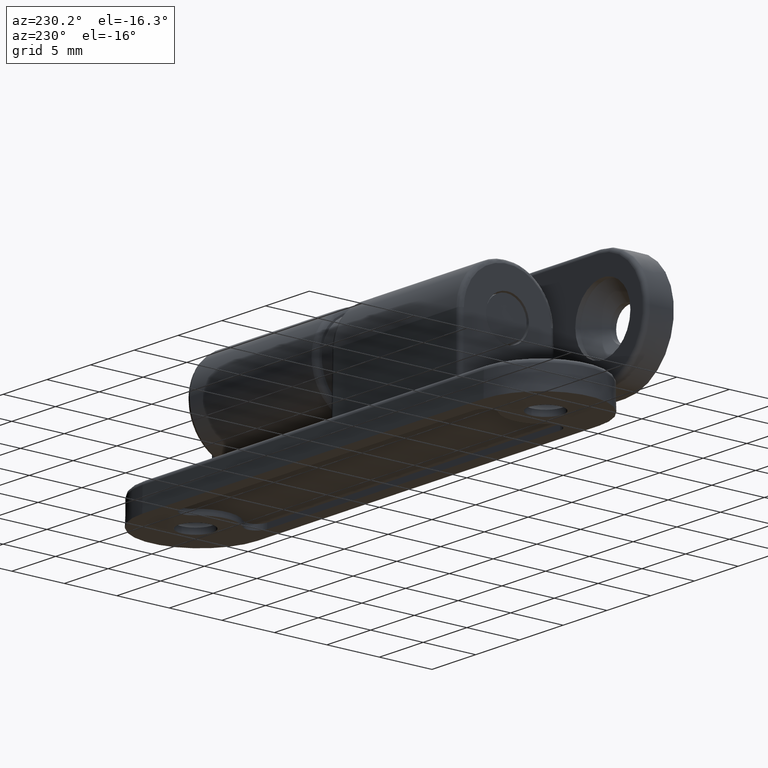
[diagram: clean part render]
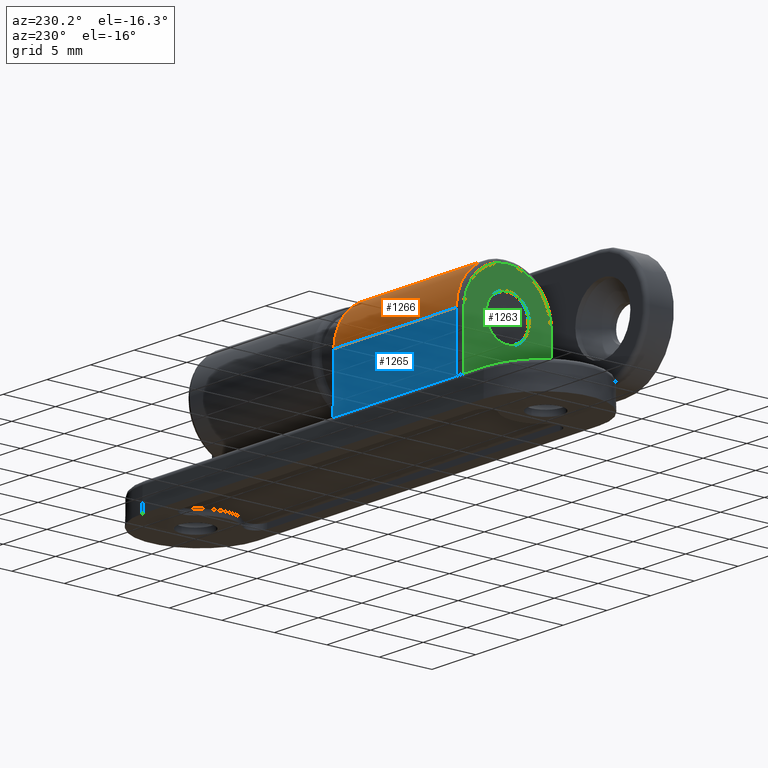
[diagram: same view with three faces highlighted in distinct colors, each labeled with its STEP entity id]
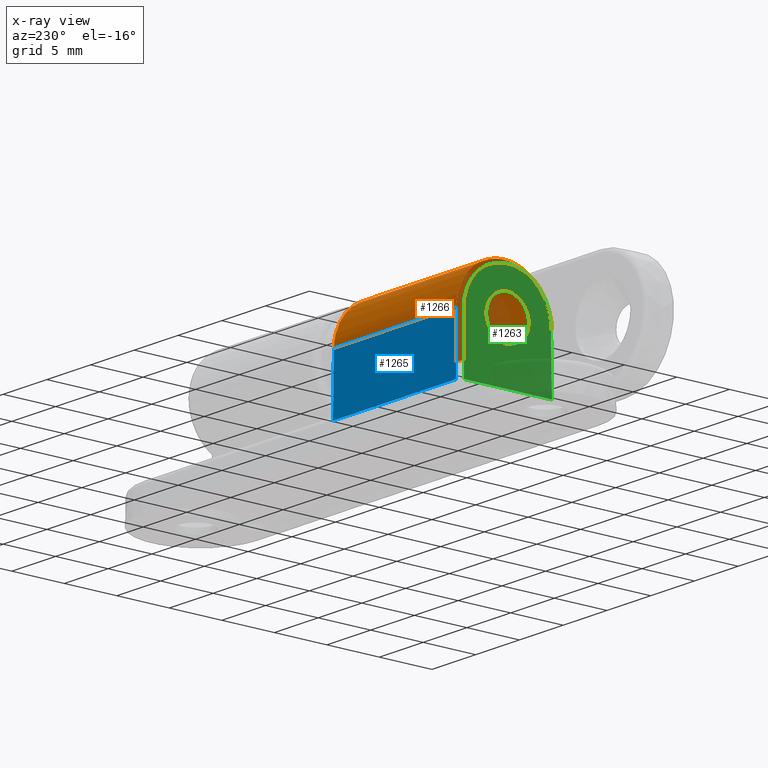
[diagram: x-ray of the same camera — body ghosted, the three highlighted faces saturated]
A machine part, auxiliary view with three faces highlighted in distinct colors.
The next image is the same camera in x-ray (body ghosted, the three faces saturated) — at least one of them is partly hidden behind the body in this view.
Their STEP definitions:

[orange] entity #1266 — the highlighted cylindrical surface (partial cylindrical patch) has radius 4.55 mm, axis along (-1, 0, -0).
#66=B_SPLINE_CURVE_WITH_KNOTS('',3,(#2737,#2738,#2739,#2740,#2741,#2742,
#2743,#2744,#2745,#2746,#2747,#2748,#2749,#2750,#2751,#2752,#2753,#2754,
#2755,#2756,#2757,#2758,#2759,#2760,#2761,#2762,#2763,#2764,#2765,#2766,
#2767,#2768,#2769,#2770,#2771,#2772,#2773,#2774,#2775,#2776,#2777,#2778,
#2779,#2780,#2781,#2782,#2783,#2784,#2785,#2786,#2787,#2788,#2789,#2790,
#2791,#2792,#2793,#2794,#2795,#2796,#2797,#2798,#2799,#2800,#2801,#2802,
#2803,#2804,#2805,#2806,#2807,#2808,#2809,#2810,#2811,#2812,#2813,#2814,
#2815,#2816,#2817,#2818,#2819,#2820,#2821,#2822,#2823,#2824,#2825,#2826,
#2827,#2828,#2829,#2830,#2831,#2832,#2833,#2834,#2835,#2836,#2837,#2838,
#2839,#2840,#2841,#2842,#2843,#2844,#2845,#2846,#2847,#2848,#2849,#2850,
#2851,#2852,#2853,#2854,#2855,#2856,#2857,#2858,#2859,#2860,#2861,#2862,
#2863,#2864,#2865,#2866,#2867,#2868,#2869,#2870,#2871,#2872,#2873,#2874,
#2875,#2876,#2877,#2878,#2879,#2880,#2881,#2882,#2883,#2884),
 .UNSPECIFIED.,.F.,.F.,(4,3,3,3,3,3,3,3,3,3,3,3,3,3,3,3,3,3,3,3,3,3,3,3,
3,3,3,3,3,3,3,3,3,3,3,3,3,3,3,3,3,3,3,3,3,3,3,3,3,4),(0.,0.0220864110622519,
0.0443492554398847,0.0668983379467098,0.0883819358082658,0.0896367224313403,
0.111276368607197,0.112575381639334,0.134555348433603,0.135726396687163,
0.1592208815081,0.182927323232232,0.20696964107204,0.216954899475843,0.240783741220988,
0.25,0.274181113312349,0.298734223252613,0.323905884750016,0.349485095444977,
0.375498946745718,0.401977769700323,0.429229210957132,0.456959053474368,
0.485474678145715,0.5,0.528678134910078,0.556343368046318,0.583438547244325,
0.610015907360414,0.636112103409371,0.661759574119072,0.6867870035,0.71148624003663,
0.73571492113616,0.75,0.773826215286149,0.783057505414613,0.807143200204973,
0.831250300179351,0.854644740362747,0.877810003393544,0.899568933898584,
0.900759887359895,0.922283448806637,0.923506875081518,0.945973491405082,
0.96828814808885,0.990390577973673,1.),.UNSPECIFIED.);
#67=B_SPLINE_CURVE_WITH_KNOTS('',3,(#2885,#2886,#2887,#2888,#2889,#2890,
#2891,#2892,#2893,#2894,#2895,#2896,#2897,#2898,#2899,#2900,#2901,#2902,
#2903,#2904,#2905,#2906,#2907,#2908,#2909,#2910,#2911,#2912,#2913,#2914,
#2915,#2916,#2917,#2918,#2919,#2920,#2921,#2922,#2923,#2924,#2925,#2926,
#2927,#2928,#2929,#2930,#2931,#2932,#2933,#2934,#2935,#2936,#2937,#2938,
#2939,#2940,#2941,#2942,#2943,#2944,#2945,#2946,#2947,#2948,#2949,#2950,
#2951,#2952,#2953,#2954,#2955,#2956,#2957,#2958,#2959,#2960,#2961,#2962,
#2963,#2964,#2965,#2966,#2967,#2968,#2969,#2970,#2971,#2972,#2973,#2974,
#2975,#2976,#2977,#2978,#2979,#2980,#2981,#2982,#2983,#2984,#2985,#2986,
#2987,#2988,#2989,#2990,#2991,#2992,#2993,#2994,#2995,#2996,#2997,#2998,
#2999,#3000,#3001,#3002,#3003,#3004,#3005,#3006,#3007,#3008,#3009,#3010,
#3011,#3012,#3013,#3014,#3015,#3016,#3017,#3018,#3019,#3020,#3021,#3022,
#3023,#3024,#3025,#3026,#3027,#3028,#3029,#3030,#3031,#3032),
 .UNSPECIFIED.,.F.,.F.,(4,3,3,3,3,3,3,3,3,3,3,3,3,3,3,3,3,3,3,3,3,3,3,3,
3,3,3,3,3,3,3,3,3,3,3,3,3,3,3,3,3,3,3,3,3,3,3,3,3,4),(0.,0.0220864109887631,
0.0443492552938548,0.0668983377294486,0.0883819355395348,0.0896367221436551,
0.111276368267365,0.11257538128236,0.134555348025491,0.135726396261697,
0.159220881016248,0.182927322675133,0.206969640452506,0.216954899189374,
0.240783740873804,0.25,0.274181113418606,0.298734223432689,0.323905884953182,
0.349485095639664,0.375498946900172,0.401977769782878,0.429229210921994,
0.45695905329541,0.485474677789302,0.5,0.528678134871698,0.556343368012736,
0.583438547148655,0.610015907196454,0.636112103171831,0.661759573803517,
0.686787003099248,0.711486239548054,0.735714920553722,0.75,0.773826215176287,
0.78305750593313,0.807143200614942,0.831250300538075,0.85464474060458,0.87781000351621,
0.899568933936551,0.900759887361342,0.922283448719095,0.923506874959792,
0.945973491156779,0.968288147712546,0.990390577466216,1.),.UNSPECIFIED.);
#138=LINE('',#2727,#210);
#142=LINE('',#2734,#214);
#210=VECTOR('',#1776,13.978751945018);
#214=VECTOR('',#1782,13.978751945018);
#336=FACE_OUTER_BOUND('',#443,.T.);
#443=EDGE_LOOP('',(#1077,#1078,#1079,#1080));
#663=VERTEX_POINT('',#2725);
#664=VERTEX_POINT('',#2726);
#665=VERTEX_POINT('',#2731);
#666=VERTEX_POINT('',#2733);
#812=EDGE_CURVE('',#663,#664,#138,.T.);
#816=EDGE_CURVE('',#665,#666,#142,.T.);
#818=EDGE_CURVE('',#665,#664,#66,.T.);
#819=EDGE_CURVE('',#663,#666,#67,.T.);
#1077=ORIENTED_EDGE('',*,*,#816,.F.);
#1078=ORIENTED_EDGE('',*,*,#818,.T.);
#1079=ORIENTED_EDGE('',*,*,#812,.F.);
#1080=ORIENTED_EDGE('',*,*,#819,.T.);
#1199=CYLINDRICAL_SURFACE('',#1424,4.54999999999995);
#1266=ADVANCED_FACE('',(#336),#1199,.T.);
#1424=AXIS2_PLACEMENT_3D('',#2736,#1784,#1785);
#1776=DIRECTION('',(-1.,0.,0.));
#1782=DIRECTION('',(1.,0.,0.));
#1784=DIRECTION('center_axis',(-1.,0.,0.));
#1785=DIRECTION('ref_axis',(0.,1.,9.95799250102962E-17));
#2725=CARTESIAN_POINT('',(-1.260624027491,8.08970573651968,4.54982674994325));
#2726=CARTESIAN_POINT('',(-15.239375972509,8.08970573651968,4.54982674994325));
#2727=CARTESIAN_POINT('',(-0.487114828091006,8.08970573651968,4.54982674994325));
#2731=CARTESIAN_POINT('',(-15.239375972509,8.08970573651968,-4.54982674994065));
#2733=CARTESIAN_POINT('',(-1.260624027491,8.08970573651968,-4.54982674994065));
#2734=CARTESIAN_POINT('',(-0.487114828091006,8.08970573651968,-4.54982674994065));
#2736=CARTESIAN_POINT('Origin',(-0.487114828091006,8.05000000000208,1.24967813874832E-12));
#2737=CARTESIAN_POINT('Ctrl Pts',(-15.2393759725095,8.08970573651968,-4.54982674994064));
#2738=CARTESIAN_POINT('Ctrl Pts',(-15.238318799767,8.22252196178717,-4.54866768030226));
#2739=CARTESIAN_POINT('Ctrl Pts',(-15.237281685112,8.35392349047203,-4.54146218164563));
#2740=CARTESIAN_POINT('Ctrl Pts',(-15.2362662505249,8.48349319843042,-4.52871681771768));
#2741=CARTESIAN_POINT('Ctrl Pts',(-15.2352427043215,8.61409795065579,-4.51586963974637));
#2742=CARTESIAN_POINT('Ctrl Pts',(-15.2342411749573,8.74284177137815,-4.49739375275306));
#2743=CARTESIAN_POINT('Ctrl Pts',(-15.2332629272725,8.86934638750036,-4.47378372599097));
#2744=CARTESIAN_POINT('Ctrl Pts',(-15.232272102049,8.99747750040074,-4.44987014008899));
#2745=CARTESIAN_POINT('Ctrl Pts',(-15.2313051564423,9.12331157026306,-4.42068951638928));
#2746=CARTESIAN_POINT('Ctrl Pts',(-15.2303631198036,9.2465026434836,-4.38673111184291));
#2747=CARTESIAN_POINT('Ctrl Pts',(-15.229465596088,9.36387271725057,-4.35437730289864));
#2748=CARTESIAN_POINT('Ctrl Pts',(-15.2285906850795,9.47884415775625,-4.31768630528496));
#2749=CARTESIAN_POINT('Ctrl Pts',(-15.2277390506109,9.59115560996598,-4.27706139824945));
#2750=CARTESIAN_POINT('Ctrl Pts',(-15.2276893094295,9.59771535423037,-4.2746886304179));
#2751=CARTESIAN_POINT('Ctrl Pts',(-15.22763964767,9.60426603736116,-4.27230243634749));
#2752=CARTESIAN_POINT('Ctrl Pts',(-15.2275900654703,9.61080761197322,-4.26990289404872));
#2753=CARTESIAN_POINT('Ctrl Pts',(-15.2267349868153,9.72362150194856,-4.22852115999565));
#2754=CARTESIAN_POINT('Ctrl Pts',(-15.2259035699646,9.83372247173047,-4.18317139085841));
#2755=CARTESIAN_POINT('Ctrl Pts',(-15.2250962171035,9.94088307323242,-4.1342451917288));
#2756=CARTESIAN_POINT('Ctrl Pts',(-15.2250477522681,9.94731585021738,-4.13130818574608));
#2757=CARTESIAN_POINT('Ctrl Pts',(-15.2249993741428,9.95373804245431,-4.12835828634736));
#2758=CARTESIAN_POINT('Ctrl Pts',(-15.2249510828113,9.96014960481172,-4.12539557611836));
#2759=CARTESIAN_POINT('Ctrl Pts',(-15.2241339687125,10.0686365285213,-4.07526499940855));
#2760=CARTESIAN_POINT('Ctrl Pts',(-15.2233417114621,10.1740768856086,-4.02146832797746));
#2761=CARTESIAN_POINT('Ctrl Pts',(-15.2225743568752,10.2762733222099,-3.96439445255223));
#2762=CARTESIAN_POINT('Ctrl Pts',(-15.2225334737721,10.2817181420188,-3.96135367170092));
#2763=CARTESIAN_POINT('Ctrl Pts',(-15.2224926613304,10.2871537609682,-3.95830358459041));
#2764=CARTESIAN_POINT('Ctrl Pts',(-15.2224519195475,10.2925801515756,-3.95524424881738));
#2765=CARTESIAN_POINT('Ctrl Pts',(-15.2216345260748,10.4014486387369,-3.89386546475536));
#2766=CARTESIAN_POINT('Ctrl Pts',(-15.2208455904531,10.5065994475049,-3.82876565246413));
#2767=CARTESIAN_POINT('Ctrl Pts',(-15.2200846154578,10.6078408349667,-3.76039318213688));
#2768=CARTESIAN_POINT('Ctrl Pts',(-15.2193167752809,10.7099955776745,-3.69140388546997));
#2769=CARTESIAN_POINT('Ctrl Pts',(-15.2185773990533,10.8081701979306,-3.61908257182945));
#2770=CARTESIAN_POINT('Ctrl Pts',(-15.2178654065742,10.9022149220056,-3.54386359522079));
#2771=CARTESIAN_POINT('Ctrl Pts',(-15.2171433264881,10.9975920846215,-3.46757890584163));
#2772=CARTESIAN_POINT('Ctrl Pts',(-15.2164493967944,11.0887216380292,-3.38831377270412));
#2773=CARTESIAN_POINT('Ctrl Pts',(-15.2157820421546,11.1754934316277,-3.30649536967507));
#2774=CARTESIAN_POINT('Ctrl Pts',(-15.2155048763435,11.2115315036229,-3.27251454046073));
#2775=CARTESIAN_POINT('Ctrl Pts',(-15.2152322905693,11.2468184323078,-3.23809299895953));
#2776=CARTESIAN_POINT('Ctrl Pts',(-15.2149641619014,11.281348528926,-3.20326013082855));
#2777=CARTESIAN_POINT('Ctrl Pts',(-15.2143242990822,11.3637512244281,-3.12013490074873));
#2778=CARTESIAN_POINT('Ctrl Pts',(-15.2137108115284,11.4417130510832,-3.03477052098328));
#2779=CARTESIAN_POINT('Ctrl Pts',(-15.213121012064,11.5153596339376,-2.94771210439472));
#2780=CARTESIAN_POINT('Ctrl Pts',(-15.2128928958782,11.5438438537345,-2.91404060223979));
#2781=CARTESIAN_POINT('Ctrl Pts',(-15.2126683214472,11.5716827330619,-2.88011513219848));
#2782=CARTESIAN_POINT('Ctrl Pts',(-15.2124471266466,11.5988841698824,-2.8459651761137));
#2783=CARTESIAN_POINT('Ctrl Pts',(-15.2118667678845,11.6702538049793,-2.75636439802161));
#2784=CARTESIAN_POINT('Ctrl Pts',(-15.2113140260791,11.7372431598522,-2.66521108602338));
#2785=CARTESIAN_POINT('Ctrl Pts',(-15.2107893761526,11.8000080915883,-2.57299050229304));
#2786=CARTESIAN_POINT('Ctrl Pts',(-15.2102566551335,11.8637385844487,-2.4793512185331));
#2787=CARTESIAN_POINT('Ctrl Pts',(-15.2097528955301,11.9231137534833,-2.38461143708782));
#2788=CARTESIAN_POINT('Ctrl Pts',(-15.2092783675509,11.9783073021785,-2.28922696332228));
#2789=CARTESIAN_POINT('Ctrl Pts',(-15.2087918850771,12.0348913083583,-2.19143952655458));
#2790=CARTESIAN_POINT('Ctrl Pts',(-15.2083361227307,12.0870803761489,-2.09297449128865));
#2791=CARTESIAN_POINT('Ctrl Pts',(-15.2079111678899,12.1350719565253,-1.99426958013582));
#2792=CARTESIAN_POINT('Ctrl Pts',(-15.2074793326926,12.1838405587154,-1.89396655805418));
#2793=CARTESIAN_POINT('Ctrl Pts',(-15.2070793064207,12.2282746968757,-1.79341575878616));
#2794=CARTESIAN_POINT('Ctrl Pts',(-15.2067110288459,12.2685915232071,-1.69302278788709));
#2795=CARTESIAN_POINT('Ctrl Pts',(-15.2063364935179,12.3095934109357,-1.59092394489494));
#2796=CARTESIAN_POINT('Ctrl Pts',(-15.2059947905777,12.3463369447905,-1.48898826695065));
#2797=CARTESIAN_POINT('Ctrl Pts',(-15.205685768087,12.3790598907845,-1.38758832323135));
#2798=CARTESIAN_POINT('Ctrl Pts',(-15.2053712221273,12.4123677268105,-1.28437595662287));
#2799=CARTESIAN_POINT('Ctrl Pts',(-15.2050905316786,12.4415100588214,-1.18171854512386));
#2800=CARTESIAN_POINT('Ctrl Pts',(-15.2048435083257,12.4667459741374,-1.0799547483897));
#2801=CARTESIAN_POINT('Ctrl Pts',(-15.2045892771463,12.4927182412951,-0.975221613781518));
#2802=CARTESIAN_POINT('Ctrl Pts',(-15.2043707044833,12.514552903291,-0.871434945023737));
#2803=CARTESIAN_POINT('Ctrl Pts',(-15.2041876000519,12.5325395995627,-0.768908051229388));
#2804=CARTESIAN_POINT('Ctrl Pts',(-15.2040012812073,12.5508420537455,-0.664581289503041));
#2805=CARTESIAN_POINT('Ctrl Pts',(-15.2038516875987,12.5651603767912,-0.561558705076451));
#2806=CARTESIAN_POINT('Ctrl Pts',(-15.2037386442999,12.5758052829929,-0.460115661708266));
#2807=CARTESIAN_POINT('Ctrl Pts',(-15.2036223976866,12.5867518345184,-0.355798020942428));
#2808=CARTESIAN_POINT('Ctrl Pts',(-15.2035448062292,12.5938139408352,-0.253150547233431));
#2809=CARTESIAN_POINT('Ctrl Pts',(-15.2035056699206,12.5973335151536,-0.152418109018722));
#2810=CARTESIAN_POINT('Ctrl Pts',(-15.2034857346224,12.5991263199879,-0.101106903211409));
#2811=CARTESIAN_POINT('Ctrl Pts',(-15.203475776723,12.6000000000019,-0.050291744011546));
#2812=CARTESIAN_POINT('Ctrl Pts',(-15.2034757623935,12.6000000000019,1.27621717101289E-12));
#2813=CARTESIAN_POINT('Ctrl Pts',(-15.203475734102,12.6000000000019,0.0992937322938478));
#2814=CARTESIAN_POINT('Ctrl Pts',(-15.2035144739378,12.5965941982408,0.200628429508697));
#2815=CARTESIAN_POINT('Ctrl Pts',(-15.203592216502,12.5894338384912,0.303781714153657));
#2816=CARTESIAN_POINT('Ctrl Pts',(-15.2036672132259,12.5825263801634,0.403291660578689));
#2817=CARTESIAN_POINT('Ctrl Pts',(-15.2037785010906,12.5721248100302,0.504494086341034));
#2818=CARTESIAN_POINT('Ctrl Pts',(-15.2039262500446,12.5579187358239,0.607142348636165));
#2819=CARTESIAN_POINT('Ctrl Pts',(-15.2040709545684,12.5440053838409,0.707675499669231));
#2820=CARTESIAN_POINT('Ctrl Pts',(-15.2042506309062,12.5264425953304,0.809595700768479));
#2821=CARTESIAN_POINT('Ctrl Pts',(-15.2044654515971,12.504942826872,0.91262316611167));
#2822=CARTESIAN_POINT('Ctrl Pts',(-15.2046761668251,12.4838539429582,1.01368166173053));
#2823=CARTESIAN_POINT('Ctrl Pts',(-15.2049206964676,12.458977012479,1.11580566091684));
#2824=CARTESIAN_POINT('Ctrl Pts',(-15.2051992273127,12.43004617659,1.21868184611997));
#2825=CARTESIAN_POINT('Ctrl Pts',(-15.2054727155562,12.4016391127611,1.31969553168178));
#2826=CARTESIAN_POINT('Ctrl Pts',(-15.2057789876182,12.3693235003829,1.42143453079209));
#2827=CARTESIAN_POINT('Ctrl Pts',(-15.206118219815,12.3328545753592,1.52355225825845));
#2828=CARTESIAN_POINT('Ctrl Pts',(-15.206451618898,12.2970127352457,1.62391406651668));
#2829=CARTESIAN_POINT('Ctrl Pts',(-15.2068168581967,12.2571591079268,1.7246417712312));
#2830=CARTESIAN_POINT('Ctrl Pts',(-15.2072140563432,12.2130694103087,1.82535619889761));
#2831=CARTESIAN_POINT('Ctrl Pts',(-15.2076016520119,12.1700456047237,1.92363580138131));
#2832=CARTESIAN_POINT('Ctrl Pts',(-15.2080196838753,12.1229880310724,2.02190275729954));
#2833=CARTESIAN_POINT('Ctrl Pts',(-15.2084681579984,12.0716968887843,2.11975611201263));
#2834=CARTESIAN_POINT('Ctrl Pts',(-15.2089107511341,12.0210783439739,2.21632628376999));
#2835=CARTESIAN_POINT('Ctrl Pts',(-15.2093829969911,11.966336494377,2.3124937234575));
#2836=CARTESIAN_POINT('Ctrl Pts',(-15.2098847423527,11.9072883831372,2.40782433871167));
#2837=CARTESIAN_POINT('Ctrl Pts',(-15.2103769287546,11.8493652220453,2.50133877073024));
#2838=CARTESIAN_POINT('Ctrl Pts',(-15.2108975035643,11.7872982765459,2.59404803297414));
#2839=CARTESIAN_POINT('Ctrl Pts',(-15.2114461250128,11.7209241996684,2.68549406994589));
#2840=CARTESIAN_POINT('Ctrl Pts',(-15.2117695887882,11.6817904590073,2.73941008149274));
#2841=CARTESIAN_POINT('Ctrl Pts',(-15.2121027981756,11.6411596470143,2.79288605177024));
#2842=CARTESIAN_POINT('Ctrl Pts',(-15.2124456466235,11.5989999839905,2.84581977345706));
#2843=CARTESIAN_POINT('Ctrl Pts',(-15.213017486724,11.5286814917251,2.9341084179111));
#2844=CARTESIAN_POINT('Ctrl Pts',(-15.2136119289826,11.4541012346046,3.02090095807875));
#2845=CARTESIAN_POINT('Ctrl Pts',(-15.2142317245602,11.3751272847777,3.10567239133316));
#2846=CARTESIAN_POINT('Ctrl Pts',(-15.2144718597528,11.3445294145458,3.13851645345461));
#2847=CARTESIAN_POINT('Ctrl Pts',(-15.2147157990411,11.3132721628557,3.17105658145156));
#2848=CARTESIAN_POINT('Ctrl Pts',(-15.2149636956842,11.2813485269563,3.20326013446202));
#2849=CARTESIAN_POINT('Ctrl Pts',(-15.2156104918311,11.1980554075577,3.28728359577469));
#2850=CARTESIAN_POINT('Ctrl Pts',(-15.2162832363514,11.1103552055945,3.3689156833299));
#2851=CARTESIAN_POINT('Ctrl Pts',(-15.2169836146282,11.0183403371343,3.44773691405616));
#2852=CARTESIAN_POINT('Ctrl Pts',(-15.2176846153378,10.926243694193,3.52662819395321));
#2853=CARTESIAN_POINT('Ctrl Pts',(-15.2184133202833,10.8298244616902,3.60270379719061));
#2854=CARTESIAN_POINT('Ctrl Pts',(-15.2191710783807,10.7292206733564,3.67551775945541));
#2855=CARTESIAN_POINT('Ctrl Pts',(-15.2199064354541,10.6315909580071,3.74617917814661));
#2856=CARTESIAN_POINT('Ctrl Pts',(-15.2206691591097,10.5300204303276,3.81376892945294));
#2857=CARTESIAN_POINT('Ctrl Pts',(-15.2214599696447,10.424679536533,3.87785460119527));
#2858=CARTESIAN_POINT('Ctrl Pts',(-15.2222430332234,10.3203705856233,3.94131247540719));
#2859=CARTESIAN_POINT('Ctrl Pts',(-15.2230536344588,10.2123646709243,4.00133459155074));
#2860=CARTESIAN_POINT('Ctrl Pts',(-15.2238919343462,10.1008724717305,4.0574764002165));
#2861=CARTESIAN_POINT('Ctrl Pts',(-15.2246793421544,9.9961488167093,4.11020991382097));
#2862=CARTESIAN_POINT('Ctrl Pts',(-15.225491181547,9.8883496116581,4.159519760932));
#2863=CARTESIAN_POINT('Ctrl Pts',(-15.226327188193,9.7776874318725,4.20501741884852));
#2864=CARTESIAN_POINT('Ctrl Pts',(-15.2263729461869,9.77163044731523,4.20750768798949));
#2865=CARTESIAN_POINT('Ctrl Pts',(-15.2264187765704,9.76556489445629,4.20998653195386));
#2866=CARTESIAN_POINT('Ctrl Pts',(-15.2264646792972,9.75949081123492,4.21245388540034));
#2867=CARTESIAN_POINT('Ctrl Pts',(-15.2272942584475,9.64971666161881,4.25704524454356));
#2868=CARTESIAN_POINT('Ctrl Pts',(-15.2281474641956,9.53715361152068,4.29788506439846));
#2869=CARTESIAN_POINT('Ctrl Pts',(-15.2290237324772,9.42204554019206,4.33457743239891));
#2870=CARTESIAN_POINT('Ctrl Pts',(-15.2290735406673,9.41550265279572,4.33666307269642));
#2871=CARTESIAN_POINT('Ctrl Pts',(-15.2291234233822,9.4089515541567,4.33873530721198));
#2872=CARTESIAN_POINT('Ctrl Pts',(-15.2291733805235,9.40239229336888,4.34079406117629));
#2873=CARTESIAN_POINT('Ctrl Pts',(-15.2300907777934,9.28194008589894,4.37860037314662));
#2874=CARTESIAN_POINT('Ctrl Pts',(-15.231033264967,9.15873102919521,4.41186285059252));
#2875=CARTESIAN_POINT('Ctrl Pts',(-15.2319999307183,9.03308807950904,4.44010752175353));
#2876=CARTESIAN_POINT('Ctrl Pts',(-15.2329600581384,8.90829495327214,4.46816115168279));
#2877=CARTESIAN_POINT('Ctrl Pts',(-15.2339440400358,8.78110064650849,4.49126467816185));
#2878=CARTESIAN_POINT('Ctrl Pts',(-15.2349507306388,8.65186609087776,4.50893031641556));
#2879=CARTESIAN_POINT('Ctrl Pts',(-15.2359478469638,8.52386063934858,4.52642794303858));
#2880=CARTESIAN_POINT('Ctrl Pts',(-15.2369672502627,8.39385335994994,4.53859063902777));
#2881=CARTESIAN_POINT('Ctrl Pts',(-15.2380075035198,8.26224098489683,4.54492085114734));
#2882=CARTESIAN_POINT('Ctrl Pts',(-15.2384597720086,8.20502017875185,4.54767302274522));
#2883=CARTESIAN_POINT('Ctrl Pts',(-15.238915976697,8.14749658284261,4.54932241686789));
#2884=CARTESIAN_POINT('Ctrl Pts',(-15.2393759725095,8.08970573651969,4.54982674994327));
#2885=CARTESIAN_POINT('Ctrl Pts',(-1.26062402749076,8.08970573651968,4.54982674994324));
#2886=CARTESIAN_POINT('Ctrl Pts',(-1.261681200229,8.22252196159815,4.54866768030651));
#2887=CARTESIAN_POINT('Ctrl Pts',(-1.26271831487994,8.35392349009148,4.54146218166882));
#2888=CARTESIAN_POINT('Ctrl Pts',(-1.26373374946359,8.48349319785778,4.52871681777663));
#2889=CARTESIAN_POINT('Ctrl Pts',(-1.26475729566353,8.61409794989852,4.51586963984048));
#2890=CARTESIAN_POINT('Ctrl Pts',(-1.26575882502469,8.74284177043545,4.49739375289865));
#2891=CARTESIAN_POINT('Ctrl Pts',(-1.26673707270641,8.86934638637331,4.47378372620396));
#2892=CARTESIAN_POINT('Ctrl Pts',(-1.2677278979269,8.99747749909971,4.44987014036788));
#2893=CARTESIAN_POINT('Ctrl Pts',(-1.26869484353067,9.12331156878872,4.42068951674934));
#2894=CARTESIAN_POINT('Ctrl Pts',(-1.2696368801668,9.24650264183843,4.38673111229909));
#2895=CARTESIAN_POINT('Ctrl Pts',(-1.27053440388073,9.36387271553221,4.35437730342172));
#2896=CARTESIAN_POINT('Ctrl Pts',(-1.27140931488791,9.47884415596329,4.31768630588191));
#2897=CARTESIAN_POINT('Ctrl Pts',(-1.27226094935474,9.59115560809805,4.27706139892782));
#2898=CARTESIAN_POINT('Ctrl Pts',(-1.27231069053543,9.5977153522747,4.27468863113119));
#2899=CARTESIAN_POINT('Ctrl Pts',(-1.27236035229426,9.60426603531796,4.27230243709606));
#2900=CARTESIAN_POINT('Ctrl Pts',(-1.27240993449322,9.61080760984273,4.26990289483293));
#2901=CARTESIAN_POINT('Ctrl Pts',(-1.27326501314631,9.72362149974493,4.22852116086918));
#2902=CARTESIAN_POINT('Ctrl Pts',(-1.27409642999661,9.83372246945365,4.18317139182878));
#2903=CARTESIAN_POINT('Ctrl Pts',(-1.27490378285597,9.94088307088339,4.13424519280402));
#2904=CARTESIAN_POINT('Ctrl Pts',(-1.27495224769065,9.94731584779463,4.13130818685928));
#2905=CARTESIAN_POINT('Ctrl Pts',(-1.27500062581539,9.95373803995808,4.12835828749884));
#2906=CARTESIAN_POINT('Ctrl Pts',(-1.27504891714627,9.96014960224223,4.12539557730842));
#2907=CARTESIAN_POINT('Ctrl Pts',(-1.27586603124327,10.0686365258915,4.07526500070663));
#2908=CARTESIAN_POINT('Ctrl Pts',(-1.2766582884931,10.1740768829192,4.02146832939094));
#2909=CARTESIAN_POINT('Ctrl Pts',(-1.27742564307858,10.2762733194629,3.96439445408907));
#2910=CARTESIAN_POINT('Ctrl Pts',(-1.2774665261811,10.2817181392008,3.96135367328231));
#2911=CARTESIAN_POINT('Ctrl Pts',(-1.27750733862226,10.2871537580793,3.9583035862166));
#2912=CARTESIAN_POINT('Ctrl Pts',(-1.27754808040453,10.2925801486161,3.95524425048864));
#2913=CARTESIAN_POINT('Ctrl Pts',(-1.27836547387534,10.4014486356663,3.89386546659465));
#2914=CARTESIAN_POINT('Ctrl Pts',(-1.27915440949605,10.5065994443293,3.82876565448403));
#2915=CARTESIAN_POINT('Ctrl Pts',(-1.27991538448934,10.6078408316939,3.76039318434987));
#2916=CARTESIAN_POINT('Ctrl Pts',(-1.28068322466422,10.709995574311,3.69140388787274));
#2917=CARTESIAN_POINT('Ctrl Pts',(-1.28142260089078,10.8081701944839,3.6190825744341));
#2918=CARTESIAN_POINT('Ctrl Pts',(-1.28213459336832,10.9022149184847,3.54386359803948));
#2919=CARTESIAN_POINT('Ctrl Pts',(-1.28285667345299,10.9975920810402,3.46757890886554));
#2920=CARTESIAN_POINT('Ctrl Pts',(-1.28355060314568,11.0887216343955,3.38831377594482));
#2921=CARTESIAN_POINT('Ctrl Pts',(-1.28421795778331,11.1754934279514,3.30649537314406));
#2922=CARTESIAN_POINT('Ctrl Pts',(-1.2844951236035,11.2115315012246,3.27251454280283));
#2923=CARTESIAN_POINT('Ctrl Pts',(-1.28476770938669,11.2468184311352,3.23809300014498));
#2924=CARTESIAN_POINT('Ctrl Pts',(-1.28503583806368,11.2813485289262,3.20326013083089));
#2925=CARTESIAN_POINT('Ctrl Pts',(-1.28567570088181,11.3637512242686,3.12013490091222));
#2926=CARTESIAN_POINT('Ctrl Pts',(-1.28628918843365,11.4417130507732,3.03477052132458));
#2927=CARTESIAN_POINT('Ctrl Pts',(-1.28687898789645,11.5153596334878,2.94771210492897));
#2928=CARTESIAN_POINT('Ctrl Pts',(-1.28710710409084,11.5438438543763,2.91404060149444));
#2929=CARTESIAN_POINT('Ctrl Pts',(-1.28733167853091,11.5716827347448,2.88011513015547));
#2930=CARTESIAN_POINT('Ctrl Pts',(-1.28755287333985,11.5988841725572,2.84596517275826));
#2931=CARTESIAN_POINT('Ctrl Pts',(-1.28813323210466,11.6702538078816,2.75636439420427));
#2932=CARTESIAN_POINT('Ctrl Pts',(-1.28868597391205,11.7372431629481,2.66521108172867));
#2933=CARTESIAN_POINT('Ctrl Pts',(-1.289210623841,11.8000080948416,2.57299049751567));
#2934=CARTESIAN_POINT('Ctrl Pts',(-1.28974334486179,11.8637385877734,2.47935121339558));
#2935=CARTESIAN_POINT('Ctrl Pts',(-1.29024710446713,11.923113756854,2.38461143158791));
#2936=CARTESIAN_POINT('Ctrl Pts',(-1.29072163244734,11.9783073055682,2.28922695746709));
#2937=CARTESIAN_POINT('Ctrl Pts',(-1.29120811492117,12.0348913116494,2.19143952053946));
#2938=CARTESIAN_POINT('Ctrl Pts',(-1.29166387726856,12.0870803793314,2.0929744851238));
#2939=CARTESIAN_POINT('Ctrl Pts',(-1.29208883210967,12.1350719595883,1.99426957383911));
#2940=CARTESIAN_POINT('Ctrl Pts',(-1.29252066730673,12.1838405615961,1.89396655174872));
#2941=CARTESIAN_POINT('Ctrl Pts',(-1.29292069357855,12.2282746995737,1.79341575249106));
#2942=CARTESIAN_POINT('Ctrl Pts',(-1.29328897115305,12.2685915257218,1.69302278162829));
#2943=CARTESIAN_POINT('Ctrl Pts',(-1.29366350648031,12.3095934132143,1.59092393879711));
#2944=CARTESIAN_POINT('Ctrl Pts',(-1.29400520942044,12.346336946843,1.48898826104023));
#2945=CARTESIAN_POINT('Ctrl Pts',(-1.29431423191038,12.3790598926219,1.38758831754098));
#2946=CARTESIAN_POINT('Ctrl Pts',(-1.29462877786884,12.41236772839,1.28437595127712));
#2947=CARTESIAN_POINT('Ctrl Pts',(-1.29490946831753,12.4415100601644,1.18171854015524));
#2948=CARTESIAN_POINT('Ctrl Pts',(-1.2951564916696,12.4667459752674,1.07995474383628));
#2949=CARTESIAN_POINT('Ctrl Pts',(-1.29541072284781,12.4927182421643,0.975221609823339));
#2950=CARTESIAN_POINT('Ctrl Pts',(-1.29562929550981,12.5145529039376,0.871434941697989));
#2951=CARTESIAN_POINT('Ctrl Pts',(-1.29581239994078,12.5325396000284,0.76890804857825));
#2952=CARTESIAN_POINT('Ctrl Pts',(-1.29599871878472,12.5508420540112,0.664581287628879));
#2953=CARTESIAN_POINT('Ctrl Pts',(-1.29614831239237,12.5651603769068,0.561558704020466));
#2954=CARTESIAN_POINT('Ctrl Pts',(-1.29626135569117,12.5758052830133,0.46011566151636));
#2955=CARTESIAN_POINT('Ctrl Pts',(-1.29637760230436,12.5867518344296,0.355798021747222));
#2956=CARTESIAN_POINT('Ctrl Pts',(-1.29645519376276,12.5938139407032,0.253150549079928));
#2957=CARTESIAN_POINT('Ctrl Pts',(-1.29649433007302,12.597333515051,0.152418111956166));
#2958=CARTESIAN_POINT('Ctrl Pts',(-1.29651426537259,12.5991263199555,0.101106905126206));
#2959=CARTESIAN_POINT('Ctrl Pts',(-1.29652422327201,12.6000000000019,0.0502917449470521));
#2960=CARTESIAN_POINT('Ctrl Pts',(-1.29652423760183,12.6000000000019,1.25373000475923E-12));
#2961=CARTESIAN_POINT('Ctrl Pts',(-1.29652426589399,12.6000000000019,-0.099293731564053));
#2962=CARTESIAN_POINT('Ctrl Pts',(-1.29648552605925,12.5965941982907,-0.200628428080908));
#2963=CARTESIAN_POINT('Ctrl Pts',(-1.29640778349557,12.5894338386363,-0.303781712061329));
#2964=CARTESIAN_POINT('Ctrl Pts',(-1.29633278677214,12.5825263803898,-0.403291657995727));
#2965=CARTESIAN_POINT('Ctrl Pts',(-1.2962214989084,12.5721248103694,-0.504494083303587));
#2966=CARTESIAN_POINT('Ctrl Pts',(-1.29607374995574,12.5579187363015,-0.607142345183093));
#2967=CARTESIAN_POINT('Ctrl Pts',(-1.29592904543368,12.5440053844882,-0.707675495561294));
#2968=CARTESIAN_POINT('Ctrl Pts',(-1.29574936909687,12.5264425961898,-0.809595696036145));
#2969=CARTESIAN_POINT('Ctrl Pts',(-1.29553454840794,12.5049428279822,-0.912623160789276));
#2970=CARTESIAN_POINT('Ctrl Pts',(-1.29532383318193,12.4838539443202,-1.01368165580125));
#2971=CARTESIAN_POINT('Ctrl Pts',(-1.29507930354041,12.458977014132,-1.11580565441324));
#2972=CARTESIAN_POINT('Ctrl Pts',(-1.29480077269787,12.4300461785694,-1.21868183907882));
#2973=CARTESIAN_POINT('Ctrl Pts',(-1.29452728445679,12.4016391150682,-1.31969552408756));
#2974=CARTESIAN_POINT('Ctrl Pts',(-1.29422101239682,12.3693235030538,-1.42143452267984));
#2975=CARTESIAN_POINT('Ctrl Pts',(-1.29388178020252,12.3328545784265,-1.52355224966724));
#2976=CARTESIAN_POINT('Ctrl Pts',(-1.29354838112209,12.2970127387105,-1.62391405743244));
#2977=CARTESIAN_POINT('Ctrl Pts',(-1.29318314182542,12.2571591118224,-1.72464176169165));
#2978=CARTESIAN_POINT('Ctrl Pts',(-1.29278594368191,12.2130694146648,-1.82535618894452));
#2979=CARTESIAN_POINT('Ctrl Pts',(-1.2923983480162,12.1700456095447,-1.92363579098907));
#2980=CARTESIAN_POINT('Ctrl Pts',(-1.29198031615488,12.1229880363895,-2.0219027465081));
#2981=CARTESIAN_POINT('Ctrl Pts',(-1.29153184203477,12.0716968946256,-2.11975610086593));
#2982=CARTESIAN_POINT('Ctrl Pts',(-1.29108924890213,12.0210783503402,-2.21632627225805));
#2983=CARTESIAN_POINT('Ctrl Pts',(-1.29061700304914,11.9663365012969,-2.31249371162326));
#2984=CARTESIAN_POINT('Ctrl Pts',(-1.29011525769096,11.907288390636,-2.40782432660257));
#2985=CARTESIAN_POINT('Ctrl Pts',(-1.28962307129262,11.8493652301303,-2.50133875832177));
#2986=CARTESIAN_POINT('Ctrl Pts',(-1.28910249648597,11.7872982852443,-2.59404802031216));
#2987=CARTESIAN_POINT('Ctrl Pts',(-1.28855387504078,11.7209242090043,-2.68549405708086));
#2988=CARTESIAN_POINT('Ctrl Pts',(-1.28823041125303,11.6817904669718,-2.73941007091514));
#2989=CARTESIAN_POINT('Ctrl Pts',(-1.28789720185259,11.6411596534821,-2.79288604345838));
#2990=CARTESIAN_POINT('Ctrl Pts',(-1.28755435339073,11.5989999888314,-2.84581976737629));
#2991=CARTESIAN_POINT('Ctrl Pts',(-1.2869825132931,11.5286814970439,-2.93410841154472));
#2992=CARTESIAN_POINT('Ctrl Pts',(-1.28638807103752,11.4541012404252,-3.02090095146728));
#2993=CARTESIAN_POINT('Ctrl Pts',(-1.2857682754638,11.3751272911213,-3.10567238452123));
#2994=CARTESIAN_POINT('Ctrl Pts',(-1.28552814025522,11.3445294188681,-3.13851644895216));
#2995=CARTESIAN_POINT('Ctrl Pts',(-1.28528420095088,11.3132721650641,-3.17105657922114));
#2996=CARTESIAN_POINT('Ctrl Pts',(-1.2850363042909,11.2813485269564,-3.20326013445923));
#2997=CARTESIAN_POINT('Ctrl Pts',(-1.28438950814697,11.1980554078413,-3.2872835954859));
#2998=CARTESIAN_POINT('Ctrl Pts',(-1.28371676362857,11.1103552061771,-3.36891568278614));
#2999=CARTESIAN_POINT('Ctrl Pts',(-1.2830163853546,11.0183403380268,-3.44773691328889));
#3000=CARTESIAN_POINT('Ctrl Pts',(-1.28231538464618,10.9262436951765,-3.52662819315008));
#3001=CARTESIAN_POINT('Ctrl Pts',(-1.28158667970173,10.8298244627554,-3.60270379636962));
#3002=CARTESIAN_POINT('Ctrl Pts',(-1.28082892160529,10.7292206744904,-3.67551775863188));
#3003=CARTESIAN_POINT('Ctrl Pts',(-1.28009356453502,10.6315909594881,-3.74617917711775));
#3004=CARTESIAN_POINT('Ctrl Pts',(-1.27933084088244,10.5300204321663,-3.81376892825067));
#3005=CARTESIAN_POINT('Ctrl Pts',(-1.27854003035087,10.424679538736,-3.87785459985221));
#3006=CARTESIAN_POINT('Ctrl Pts',(-1.27775696677571,10.3203705882024,-3.94131247391535));
#3007=CARTESIAN_POINT('Ctrl Pts',(-1.2769463655423,10.212364673887,-4.00133458994318));
#3008=CARTESIAN_POINT('Ctrl Pts',(-1.27610806565888,10.1008724750801,-4.05747639852698));
#3009=CARTESIAN_POINT('Ctrl Pts',(-1.27532065785331,9.99614882029125,-4.11020991212046));
#3010=CARTESIAN_POINT('Ctrl Pts',(-1.27450881846239,9.88834961546764,-4.15951975924177));
#3011=CARTESIAN_POINT('Ctrl Pts',(-1.27367281181882,9.77768743590212,-4.20501741718894));
#3012=CARTESIAN_POINT('Ctrl Pts',(-1.2736270538263,9.77163045151905,-4.20750768626492));
#3013=CARTESIAN_POINT('Ctrl Pts',(-1.27358122344421,9.76556489883476,-4.20998653016497));
#3014=CARTESIAN_POINT('Ctrl Pts',(-1.2735353207188,9.75949081578846,-4.21245388354781));
#3015=CARTESIAN_POINT('Ctrl Pts',(-1.27270574157125,9.64971666642402,-4.25704524272389));
#3016=CARTESIAN_POINT('Ctrl Pts',(-1.2718525358248,9.53715361657117,-4.29788506263388));
#3017=CARTESIAN_POINT('Ctrl Pts',(-1.27097626754608,9.42204554547871,-4.33457743071091));
#3018=CARTESIAN_POINT('Ctrl Pts',(-1.27092645935736,9.41550265825155,-4.33666307096312));
#3019=CARTESIAN_POINT('Ctrl Pts',(-1.27087657664374,9.40895155978209,-4.33873530543409));
#3020=CARTESIAN_POINT('Ctrl Pts',(-1.27082661950388,9.40239229916418,-4.34079405935452));
#3021=CARTESIAN_POINT('Ctrl Pts',(-1.26990922223852,9.28194009212742,-4.37860037136243));
#3022=CARTESIAN_POINT('Ctrl Pts',(-1.26896673506999,9.1587310358547,-4.41186284888348));
#3023=CARTESIAN_POINT('Ctrl Pts',(-1.26800006932262,9.03308808659302,-4.44010752015831));
#3024=CARTESIAN_POINT('Ctrl Pts',(-1.26703994190655,8.90829496079048,-4.46816115019775));
#3025=CARTESIAN_POINT('Ctrl Pts',(-1.26605596001515,8.78110065445523,-4.49126467682614));
#3026=CARTESIAN_POINT('Ctrl Pts',(-1.26504926941716,8.65186609924253,-4.50893031526948));
#3027=CARTESIAN_POINT('Ctrl Pts',(-1.26405215309721,8.5238606481527,-4.52642794207686));
#3028=CARTESIAN_POINT('Ctrl Pts',(-1.26303274980433,8.39385336918407,-4.53859063829206));
#3029=CARTESIAN_POINT('Ctrl Pts',(-1.26199249655385,8.26224099454692,-4.5449208506806));
#3030=CARTESIAN_POINT('Ctrl Pts',(-1.26154022804141,8.2050201852215,-4.54767302255709));
#3031=CARTESIAN_POINT('Ctrl Pts',(-1.26108402332801,8.14749658609359,-4.54932241683693));
#3032=CARTESIAN_POINT('Ctrl Pts',(-1.26062402749076,8.08970573651968,-4.54982674994068));

[blue] entity #1265 — the highlighted planar face has unit normal (0, 1, 0.0087).
#123=LINE('',#2571,#195);
#141=LINE('',#2732,#213);
#142=LINE('',#2734,#214);
#143=LINE('',#2735,#215);
#195=VECTOR('',#1717,14.074567817364);
#213=VECTOR('',#1781,5.49012380682574);
#214=VECTOR('',#1782,13.978751945018);
#215=VECTOR('',#1783,5.49012380682574);
#243=PLANE('',#1423);
#335=FACE_OUTER_BOUND('',#442,.T.);
#442=EDGE_LOOP('',(#1073,#1074,#1075,#1076));
#640=VERTEX_POINT('',#2568);
#641=VERTEX_POINT('',#2570);
#665=VERTEX_POINT('',#2731);
#666=VERTEX_POINT('',#2733);
#781=EDGE_CURVE('',#641,#640,#123,.T.);
#815=EDGE_CURVE('',#640,#665,#141,.T.);
#816=EDGE_CURVE('',#665,#666,#142,.T.);
#817=EDGE_CURVE('',#666,#641,#143,.T.);
#1073=ORIENTED_EDGE('',*,*,#781,.T.);
#1074=ORIENTED_EDGE('',*,*,#815,.T.);
#1075=ORIENTED_EDGE('',*,*,#816,.T.);
#1076=ORIENTED_EDGE('',*,*,#817,.T.);
#1265=ADVANCED_FACE('',(#335),#243,.T.);
#1423=AXIS2_PLACEMENT_3D('',#2730,#1779,#1780);
#1717=DIRECTION('',(-1.,0.,0.));
#1779=DIRECTION('center_axis',(0.,0.00872653549837415,-0.999961923064171));
#1780=DIRECTION('ref_axis',(0.,0.999961923064171,0.00872653549837388));
#1781=DIRECTION('',(0.00872620324394422,0.99992385047757,0.00872620324394445));
#1782=DIRECTION('',(1.,0.,0.));
#1783=DIRECTION('',(0.00872620324394422,-0.99992385047757,-0.00872620324394445));
#2568=CARTESIAN_POINT('',(-15.287283908682,2.59999999999991,-4.59773468611346));
#2570=CARTESIAN_POINT('',(-1.212716091318,2.59999999999991,-4.59773468611346));
#2571=CARTESIAN_POINT('',(-0.487114828091006,2.59999999999991,-4.59773468611346));
#2730=CARTESIAN_POINT('Origin',(-0.487114828091006,8.08970573651968,-4.54982674994065));
#2731=CARTESIAN_POINT('',(-15.239375972509,8.08970573651968,-4.54982674994065));
#2732=CARTESIAN_POINT('',(-15.238252637641,8.218427162752,-4.54870341507206));
#2733=CARTESIAN_POINT('',(-1.260624027491,8.08970573651968,-4.54982674994065));
#2734=CARTESIAN_POINT('',(-0.487114828091006,8.08970573651968,-4.54982674994065));
#2735=CARTESIAN_POINT('',(-1.21268563382902,2.59650991739753,-4.59776514360285));

[green] entity #1263 — the highlighted planar face has unit normal (-1, 0, 0.0087).
#65=B_SPLINE_CURVE_WITH_KNOTS('',3,(#2672,#2673,#2674,#2675,#2676,#2677,
#2678,#2679,#2680,#2681,#2682,#2683,#2684,#2685,#2686,#2687,#2688,#2689,
#2690,#2691,#2692,#2693,#2694,#2695,#2696,#2697,#2698,#2699,#2700,#2701,
#2702,#2703,#2704,#2705,#2706,#2707,#2708,#2709,#2710,#2711,#2712,#2713,
#2714,#2715,#2716,#2717,#2718,#2719),.UNSPECIFIED.,.F.,.F.,(4,2,2,2,2,2,
2,2,2,2,2,2,2,2,2,2,2,2,2,2,2,2,2,4),(0.,0.0487116028335229,0.0996750286799395,
0.150688536456531,0.200344268228266,0.25,0.296132988132769,0.343827388404063,
0.392491206378603,0.440476828658338,0.48642159497498,0.5,0.546129298301107,
0.593826077757389,0.642495146207849,0.690484190948461,0.736425175777767,
0.75,0.794570624913078,0.840490973795127,0.887171787295994,0.933217937264174,
0.977324252812336,1.),.UNSPECIFIED.);
#79=ELLIPSE('',#1421,2.05007806069076,2.05);
#122=LINE('',#2567,#194);
#136=LINE('',#2720,#208);
#137=LINE('',#2721,#209);
#194=VECTOR('',#1714,8.3954998337781);
#208=VECTOR('',#1770,5.49012380682574);
#209=VECTOR('',#1771,5.49012380682574);
#241=PLANE('',#1420);
#274=FACE_BOUND('',#440,.T.);
#333=FACE_OUTER_BOUND('',#439,.T.);
#439=EDGE_LOOP('',(#1064,#1065,#1066,#1067));
#440=EDGE_LOOP('',(#1068));
#638=VERTEX_POINT('',#2564);
#639=VERTEX_POINT('',#2566);
#660=VERTEX_POINT('',#2670);
#661=VERTEX_POINT('',#2671);
#662=VERTEX_POINT('',#2722);
#779=EDGE_CURVE('',#638,#639,#122,.T.);
#808=EDGE_CURVE('',#660,#661,#65,.T.);
#809=EDGE_CURVE('',#661,#639,#136,.T.);
#810=EDGE_CURVE('',#638,#660,#137,.T.);
#811=EDGE_CURVE('',#662,#662,#79,.T.);
#1064=ORIENTED_EDGE('',*,*,#808,.T.);
#1065=ORIENTED_EDGE('',*,*,#809,.T.);
#1066=ORIENTED_EDGE('',*,*,#779,.F.);
#1067=ORIENTED_EDGE('',*,*,#810,.T.);
#1068=ORIENTED_EDGE('',*,*,#811,.F.);
#1263=ADVANCED_FACE('',(#333,#274),#241,.T.);
#1420=AXIS2_PLACEMENT_3D('',#2669,#1768,#1769);
#1421=AXIS2_PLACEMENT_3D('',#2723,#1772,#1773);
#1714=DIRECTION('',(0.,2.22044604925031E-16,-1.));
#1768=DIRECTION('center_axis',(-0.999961923064171,0.00872653549837393,1.9376801271007E-18));
#1769=DIRECTION('ref_axis',(-0.00872653549837388,-0.999961923064171,-2.22036150146898E-16));
#1770=DIRECTION('',(-0.00872620324394422,-0.99992385047757,-0.00872620324394445));
#1771=DIRECTION('',(0.00872620324394422,0.99992385047757,-0.008726203243944));
#1772=DIRECTION('center_axis',(-0.999961923064171,0.00872653549837393,1.9376801271007E-18));
#1773=DIRECTION('ref_axis',(-0.00872653549837393,-0.999961923064171,-2.22036150146858E-16));
#2564=CARTESIAN_POINT('',(-15.687268677908,2.59999999999991,4.19774991689035));
#2566=CARTESIAN_POINT('',(-15.687268677908,2.59999999999991,-4.19774991688775));
#2567=CARTESIAN_POINT('',(-15.687268677908,2.59999999999991,4.55000000000045));
#2669=CARTESIAN_POINT('Origin',(-15.6,12.600000000002,8.51008152835675E-13));
#2670=CARTESIAN_POINT('',(-15.639360741735,8.08970573651968,4.14984198071755));
#2671=CARTESIAN_POINT('',(-15.639360741735,8.08970573651968,-4.14984198071495));
#2672=CARTESIAN_POINT('Ctrl Pts',(-15.639360741735,8.08970573651968,4.14984198071755));
#2673=CARTESIAN_POINT('Ctrl Pts',(-15.637516578825,8.30102587498264,4.14794180297705));
#2674=CARTESIAN_POINT('Ctrl Pts',(-15.635679347593,8.51155051213258,4.12924782895936));
#2675=CARTESIAN_POINT('Ctrl Pts',(-15.631971055055,8.93647685809576,4.05864927745405));
#2676=CARTESIAN_POINT('Ctrl Pts',(-15.63010234583,9.15060902558663,4.00524925188954));
#2677=CARTESIAN_POINT('Ctrl Pts',(-15.626459048305,9.56808933859597,3.86591788791276));
#2678=CARTESIAN_POINT('Ctrl Pts',(-15.624684543414,9.7714278824321,3.77995404739695));
#2679=CARTESIAN_POINT('Ctrl Pts',(-15.621318651822,10.1571221135451,3.58024237716275));
#2680=CARTESIAN_POINT('Ctrl Pts',(-15.619723639848,10.3398931771987,3.46729424661505));
#2681=CARTESIAN_POINT('Ctrl Pts',(-15.616703022496,10.6860228244046,3.21433577188925));
#2682=CARTESIAN_POINT('Ctrl Pts',(-15.61527740797,10.8493824432315,3.07432493133736));
#2683=CARTESIAN_POINT('Ctrl Pts',(-15.612729025257,11.1413981782868,2.77982776382525));
#2684=CARTESIAN_POINT('Ctrl Pts',(-15.61159799503,11.2710011963789,2.62764995057625));
#2685=CARTESIAN_POINT('Ctrl Pts',(-15.60950548475,11.5107790640342,2.30094642537644));
#2686=CARTESIAN_POINT('Ctrl Pts',(-15.608551032677,11.6201485381104,2.12583791105925));
#2687=CARTESIAN_POINT('Ctrl Pts',(-15.606857023701,11.8142629016669,1.75792326153456));
#2688=CARTESIAN_POINT('Ctrl Pts',(-15.606122222621,11.8984627983192,1.56482872351526));
#2689=CARTESIAN_POINT('Ctrl Pts',(-15.604917582155,12.0365008125659,1.17109534316305));
#2690=CARTESIAN_POINT('Ctrl Pts',(-15.604444189028,12.0907461669819,0.970597963261753));
#2691=CARTESIAN_POINT('Ctrl Pts',(-15.603776576688,12.1672469082439,0.572290741890853));
#2692=CARTESIAN_POINT('Ctrl Pts',(-15.60357133951,12.1907648678401,0.374728290189353));
#2693=CARTESIAN_POINT('Ctrl Pts',(-15.603471832296,12.2021673986249,0.11754216435105));
#2694=CARTESIAN_POINT('Ctrl Pts',(-15.60346035298,12.203482823099,0.0587896460085507));
#2695=CARTESIAN_POINT('Ctrl Pts',(-15.603460054002,12.2035170825592,-0.199723392598045));
#2696=CARTESIAN_POINT('Ctrl Pts',(-15.603591747767,12.1884262627616,-0.399024375676646));
#2697=CARTESIAN_POINT('Ctrl Pts',(-15.604112844472,12.1287144331276,-0.799846730402349));
#2698=CARTESIAN_POINT('Ctrl Pts',(-15.604510852354,12.0831073464806,-1.00121441727175));
#2699=CARTESIAN_POINT('Ctrl Pts',(-15.605568271872,11.9619392335103,-1.39919341051375));
#2700=CARTESIAN_POINT('Ctrl Pts',(-15.606232848525,11.885786325549,-1.59562530735775));
#2701=CARTESIAN_POINT('Ctrl Pts',(-15.607796546477,11.7066041780547,-1.97246145536095));
#2702=CARTESIAN_POINT('Ctrl Pts',(-15.608692265433,11.6039648271924,-2.15305246286485));
#2703=CARTESIAN_POINT('Ctrl Pts',(-15.610665334331,11.3778734694651,-2.48977562032405));
#2704=CARTESIAN_POINT('Ctrl Pts',(-15.611733306768,11.2554960575789,-2.64662348647345));
#2705=CARTESIAN_POINT('Ctrl Pts',(-15.613242582805,11.0825502869979,-2.83727531334345));
#2706=CARTESIAN_POINT('Ctrl Pts',(-15.613595305863,11.0421322530446,-2.87991508648215));
#2707=CARTESIAN_POINT('Ctrl Pts',(-15.615141805747,10.8649209189879,-3.05872705806185));
#2708=CARTESIAN_POINT('Ctrl Pts',(-15.616411364259,10.7194437693926,-3.18555789077955));
#2709=CARTESIAN_POINT('Ctrl Pts',(-15.619130538612,10.4078573120624,-3.42104605702694));
#2710=CARTESIAN_POINT('Ctrl Pts',(-15.620584448096,10.2412559149047,-3.52903738013505));
#2711=CARTESIAN_POINT('Ctrl Pts',(-15.623634806301,9.89171939227113,-3.72220100847295));
#2712=CARTESIAN_POINT('Ctrl Pts',(-15.625233224767,9.70855851461863,-3.80696648022565));
#2713=CARTESIAN_POINT('Ctrl Pts',(-15.628497624579,9.33449462990574,-3.94877139595195));
#2714=CARTESIAN_POINT('Ctrl Pts',(-15.630162401713,9.14372965799354,-4.00617259976085));
#2715=CARTESIAN_POINT('Ctrl Pts',(-15.633478181026,8.76377893757997,-4.09153879260146));
#2716=CARTESIAN_POINT('Ctrl Pts',(-15.635126817769,8.57486430457421,-4.12064216091636));
#2717=CARTESIAN_POINT('Ctrl Pts',(-15.637643161331,8.28652068269428,-4.14442324079205));
#2718=CARTESIAN_POINT('Ctrl Pts',(-15.638501093163,8.18821170593312,-4.14895622107215));
#2719=CARTESIAN_POINT('Ctrl Pts',(-15.639360741735,8.08970573651968,-4.14984198071505));
#2720=CARTESIAN_POINT('',(-15.599687000735,12.6358661633246,-4.11016823971466));
#2721=CARTESIAN_POINT('',(-15.599687000735,12.6358661633246,4.11016823971725));
#2722=CARTESIAN_POINT('',(-15.621817169477,10.1000000000021,1.25013333018842E-12));
#2723=CARTESIAN_POINT('Origin',(-15.639707248448,8.05000000000208,1.24967813874832E-12));